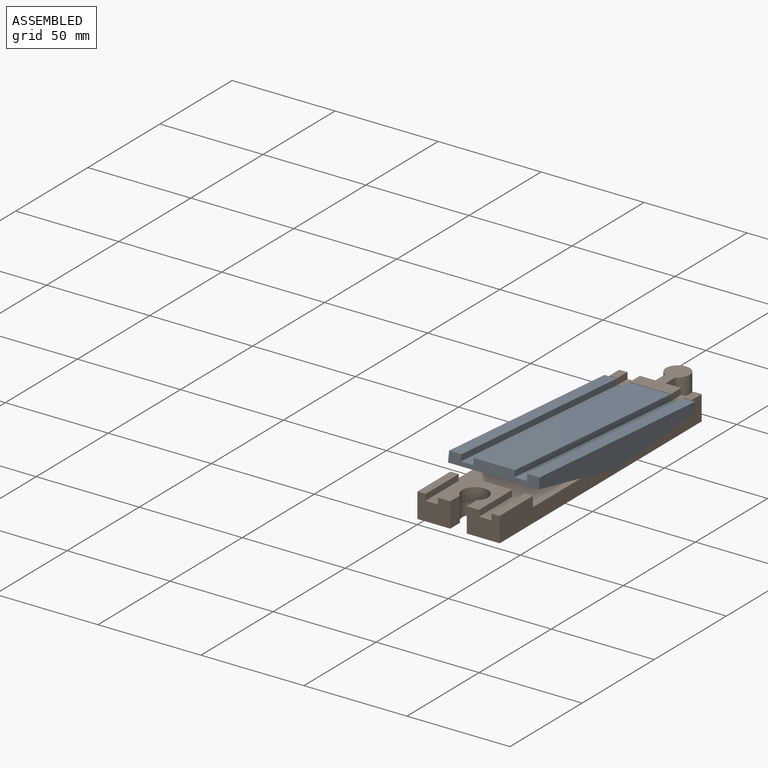
[diagram: assembled view]
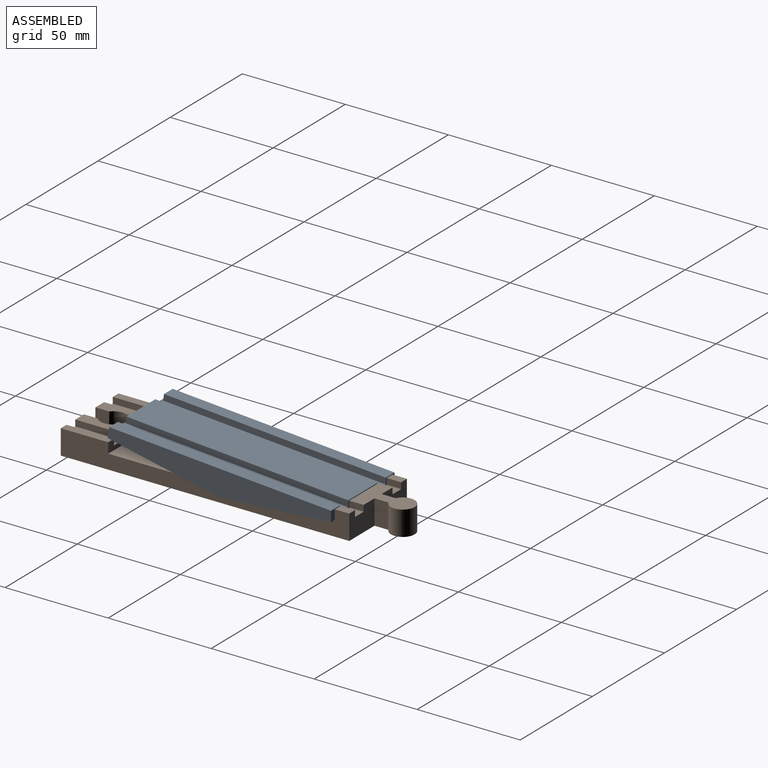
[diagram: assembled view, second angle]
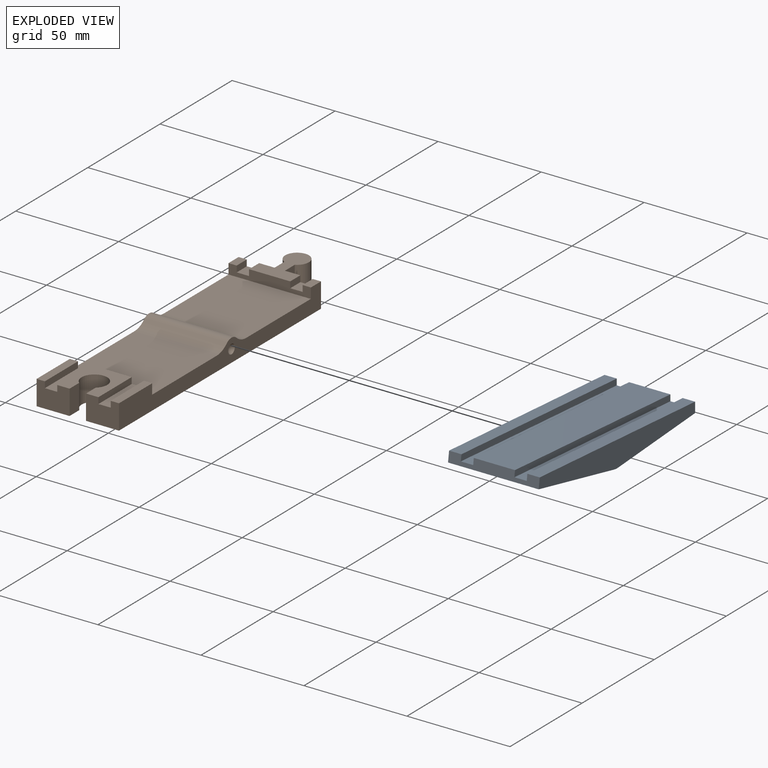
[diagram: exploded view]
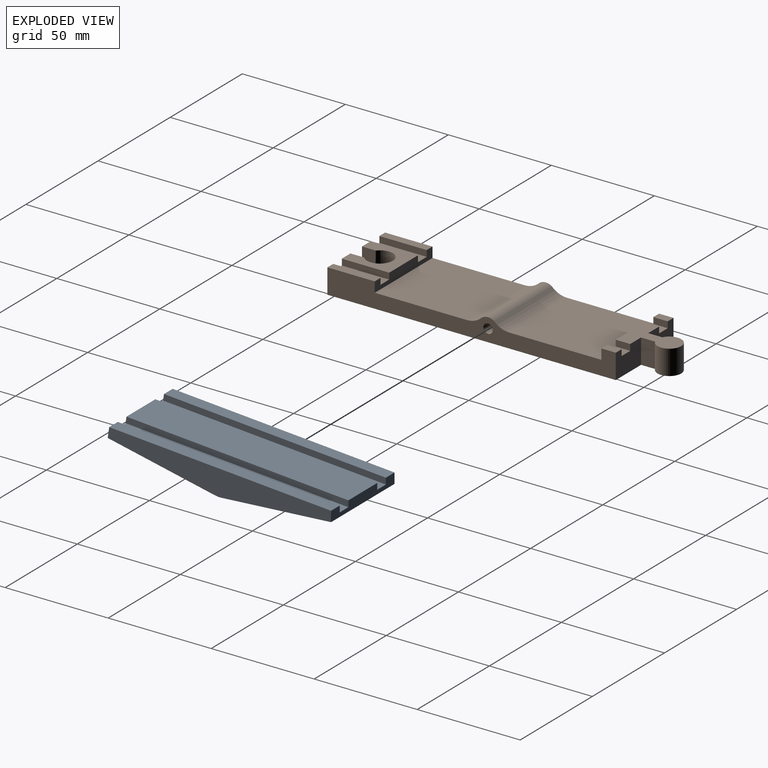
[diagram: exploded view, second angle]
ASSEMBLY  parts=2 mates=2
PART A: 22 faces, bbox 44x108.7x12.5 mm
  f0: plane 108x6mm, normal (0,0,1), area 648mm2, adj f2,f3,f8,f19
  f1: plane 108x20mm, normal (0,0,1), area 2160mm2, adj f2,f3,f16,f21
  f2: plane 44x4.99mm, normal (0,1,0.07), area 183.9mm2, adj f0,f1,f4,f5,f8,f12,f16,f17
  f3: plane 44x4.99mm, normal (0,-1,0.07), area 183.9mm2, adj f0,f1,f4,f7,f8,f12,f16,f17
  f4: plane 108x6mm, normal (0,0,1), area 648mm2, adj f2,f3,f12,f18
  f5: plane 52.61x44mm, normal (0,0.14,-0.99), area 487.4mm2, adj f2,f6,f8,f9,f10,f11,f12,f13
  f6: cylinder r=12.5mm len=3.48mm, axis (1,0,0), area 5.2mm2, adj f5,f7,f8,f9
  f7: plane 52.61x44mm, normal (0,-0.14,-0.99), area 487.4mm2, adj f3,f6,f8,f9,f10,f11,f12,f13
  f8: plane 108.7x12.5mm, normal (-1,0,0), area 955.2mm2, adj f0,f2,f3,f5,f6,f7
  f9: plane 92.85x6.4mm, normal (1,0,0), area 286.2mm2, adj f5,f6,f7,f13,f15
  f10: plane 92.85x6.4mm, normal (-1,0,0), area 286.2mm2, adj f5,f7,f11,f13,f14
  f11: cylinder r=12.5mm len=3.48mm, axis (-1,0,0), area 5.2mm2, adj f5,f7,f10,f12
  f12: plane 108.7x12.5mm, normal (1,0,0), area 955.2mm2, adj f2,f3,f4,f5,f7,f11
  f13: plane 92.85x41mm, normal (0,0,-1), area 3807mm2, adj f5,f7,f9,f10
  f14: sphere r=2.5mm, area 23.6mm2, adj f10
  f15: sphere r=2.5mm, area 23.6mm2, adj f9
  f16: plane 108.42x3mm, normal (1,0,0), area 324.6mm2, adj f1,f2,f3,f17
  f17: plane 108.42x6mm, normal (0,0,1), area 650.5mm2, adj f2,f3,f16,f18
  f18: plane 108.42x3mm, normal (-1,0,0), area 324.6mm2, adj f2,f3,f4,f17
  f19: plane 108.42x3mm, normal (1,0,0), area 324.6mm2, adj f0,f2,f3,f20
  f20: plane 108.42x6mm, normal (0,0,1), area 650.5mm2, adj f2,f3,f19,f21
  f21: plane 108.42x3mm, normal (-1,0,0), area 324.6mm2, adj f1,f2,f3,f20
PART B: 40 faces, bbox 40x157.8x12 mm
  f0: plane 24.75x20mm, normal (0,0,1), area 276.1mm2, adj f13,f14,f17,f18,f19,f25,f29,f37
  f1: plane 7x4mm, normal (0,0,1), area 28mm2, adj f14,f20,f26,f37
  f2: plane 7x4mm, normal (0,0,1), area 28mm2, adj f3,f13,f28,f37
  f3: plane 140x12mm, normal (1,0,0), area 1149.2mm2, adj f2,f12,f13,f16,f24,f31,f32,f33
  f4: plane 23x3mm, normal (-1,0,0), area 69mm2, adj f6,f10,f21,f32
  f5: plane 23x3mm, normal (1,0,0), area 69mm2, adj f6,f11,f21,f32
  f6: plane 23x6mm, normal (0,0,1), area 138mm2, adj f4,f5,f21,f32
  f7: plane 23x3mm, normal (-1,0,0), area 69mm2, adj f9,f12,f16,f32
  f8: plane 23x3mm, normal (1,0,0), area 69mm2, adj f9,f10,f16,f32
  f9: plane 23x6mm, normal (0,0,1), area 138mm2, adj f7,f8,f16,f32
  f10: plane 23x20mm, normal (0,0,1), area 291.6mm2, adj f4,f8,f15,f16,f21,f22,f23,f32
  f11: plane 23x4mm, normal (0,0,1), area 92mm2, adj f5,f20,f21,f32
  f12: plane 23x4mm, normal (0,0,1), area 92mm2, adj f3,f7,f16,f32
  f13: plane 17.5x12mm, normal (0,1,0), area 192mm2, adj f0,f2,f3,f17,f24,f28,f29,f30
  f14: plane 17.5x12mm, normal (0,1,0), area 192mm2, adj f0,f1,f19,f20,f24,f25,f26,f27
  f15: plane 12x6.7mm, normal (-1,0,0), area 80.4mm2, adj f10,f16,f23,f24
  f16: plane 16x12mm, normal (0,-1,0), area 174mm2, adj f3,f7,f8,f9,f10,f12,f15,f24
  f17: plane 12x6.82mm, normal (1,0,0), area 81.9mm2, adj f0,f13,f18,f24
  f18: cylinder r=5.75mm len=12mm, axis (0,0,-1), area 371.5mm2, adj f0,f17,f19,f24
  f19: plane 12x6.82mm, normal (-1,0,0), area 81.9mm2, adj f0,f14,f18,f24
  f20: plane 140x12mm, normal (-1,0,0), area 1149.2mm2, adj f1,f11,f14,f21,f24,f31,f32,f33
  f21: plane 16x12mm, normal (0,-1,0), area 174mm2, adj f4,f5,f6,f10,f11,f20,f22,f24
  f22: plane 12x6.7mm, normal (1,0,0), area 80.4mm2, adj f10,f21,f23,f24
  f23: cylinder r=6.25mm len=12.5mm, axis (0,0,-1), area 367.1mm2, adj f10,f15,f22,f24
  f24: plane 157.75x40mm, normal (0,0,-1), area 5567.7mm2, adj f3,f13,f14,f15,f16,f17,f18,f19
  f25: plane 7x3mm, normal (-1,0,0), area 21mm2, adj f0,f14,f27,f37
  f26: plane 7x3mm, normal (1,0,0), area 21mm2, adj f1,f14,f27,f37
  f27: plane 7x6mm, normal (0,0,1), area 42mm2, adj f14,f25,f26,f37
  f28: plane 7x3mm, normal (-1,0,0), area 21mm2, adj f2,f13,f30,f37
  f29: plane 7x3mm, normal (1,0,0), area 21mm2, adj f0,f13,f30,f37
  f30: plane 7x6mm, normal (0,0,1), area 42mm2, adj f13,f28,f29,f37
  f31: cylinder r=5mm len=40mm, axis (1,0,0), area 299mm2, adj f3,f20,f34,f35
  f32: plane 40x5mm, normal (0,1,0), area 164mm2, adj f3,f4,f5,f6,f7,f8,f9,f10
  f33: plane 44.8x40mm, normal (0,0,1), area 1792.1mm2, adj f3,f20,f32,f34
  f34: cylinder r=10mm len=40mm, axis (1,0,0), area 299mm2, adj f3,f20,f31,f33
  f35: cylinder r=10mm len=40mm, axis (1,0,0), area 299mm2, adj f3,f20,f31,f36
  f36: plane 44.8x40mm, normal (0,0,1), area 1792.1mm2, adj f3,f20,f35,f37
  f37: plane 40x5mm, normal (0,-1,0), area 164mm2, adj f0,f1,f2,f3,f20,f25,f26,f27
  f38: sphere r=2.5mm, area 23.6mm2, adj f3
  f39: sphere r=2.5mm, area 23.6mm2, adj f20
PLACE A rot(axis=(-1,0,0),4.2deg) t=(40.5,78.73,15.97)mm
PLACE B at identity fixed
MATE planar A.f18 <-> B.f7  axis (-1,0,0) through (36,24.88,19.93)mm
MATE cylindrical A.f10 <-> B.f31  axis (-1,0,0) through (40.5,78,6)mm
